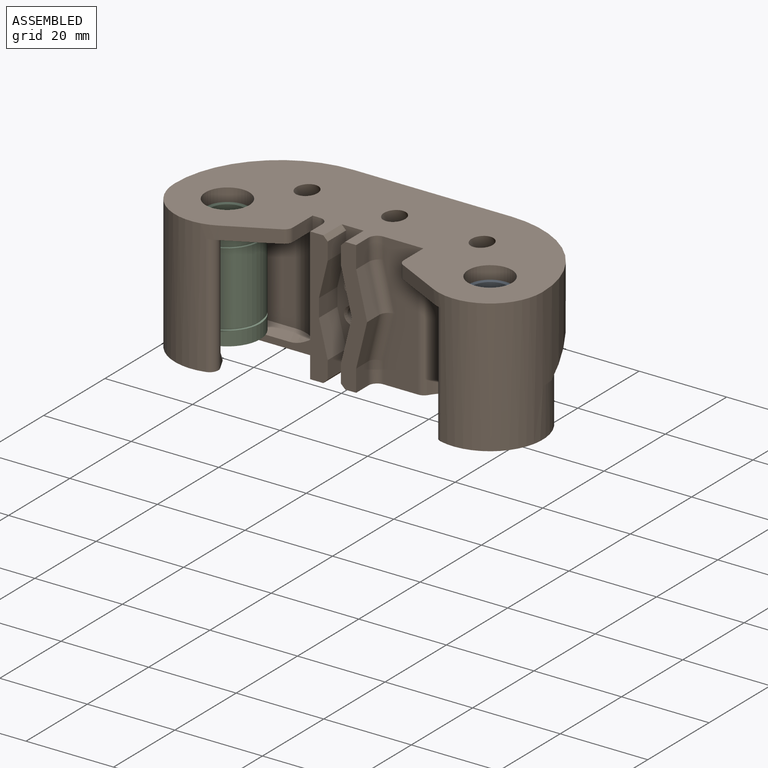
[diagram: assembled view]
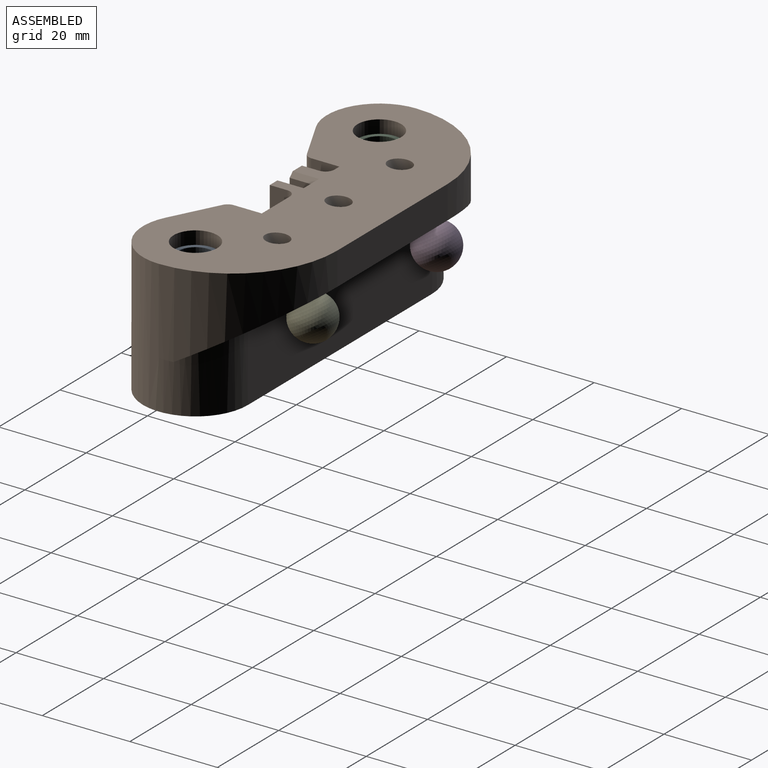
[diagram: assembled view, second angle]
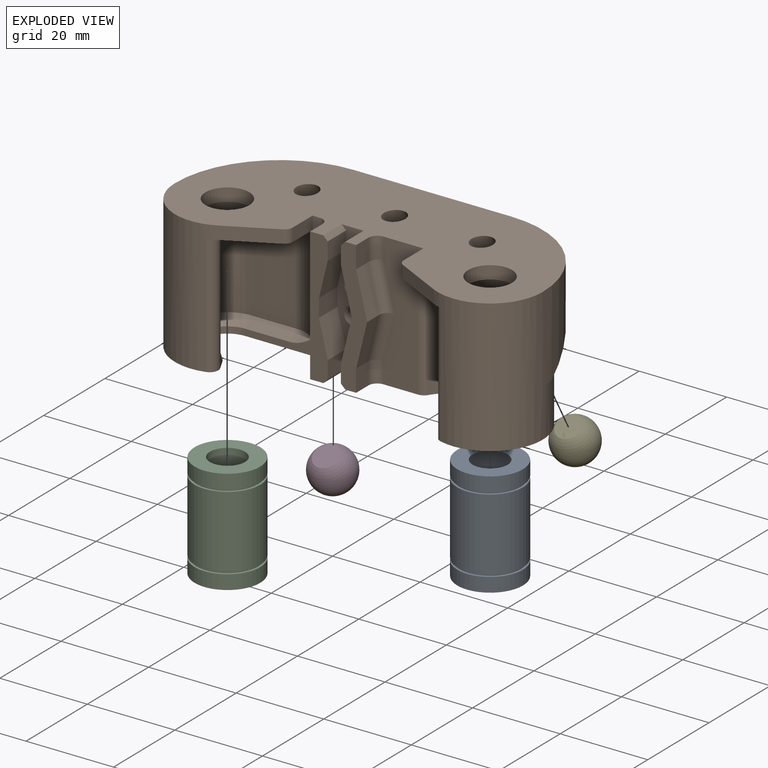
[diagram: exploded view]
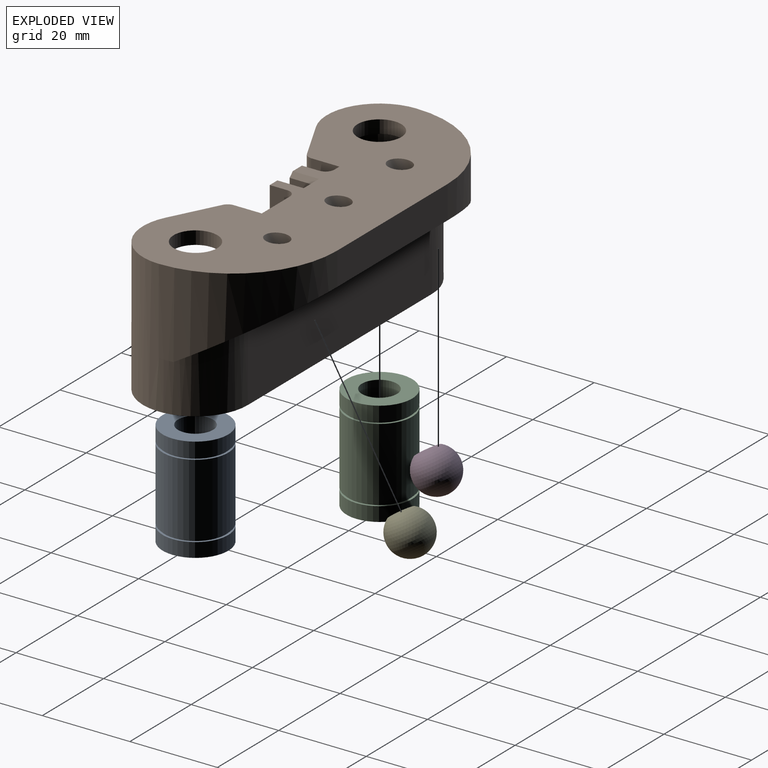
[diagram: exploded view, second angle]
ASSEMBLY  parts=5 mates=3
PART A: 12 faces, bbox 15x15x24 mm
  f0: plane 15x15mm, normal (0,0,1), area 126.4mm2, adj f1,f11
  f1: cylinder r=4mm len=24mm, axis (0,0,-1), area 603.2mm2, adj f0,f2
  f2: plane 15x15mm, normal (0,0,-1), area 126.4mm2, adj f1,f3
  f3: cylinder r=7.5mm len=15mm, axis (0,0,-1), area 153.2mm2, adj f2,f4
  f4: plane 15x15mm, normal (0,0,1), area 22.8mm2, adj f3,f5
  f5: cylinder r=7mm len=14mm, axis (0,0,-1), area 22mm2, adj f4,f6
  f6: plane 15x15mm, normal (0,0,-1), area 22.8mm2, adj f5,f7
  f7: cylinder r=7.5mm len=16.5mm, axis (0,0,-1), area 777.5mm2, adj f6,f8
  f8: plane 15x15mm, normal (0,0,1), area 22.8mm2, adj f7,f9
  f9: cylinder r=7mm len=14mm, axis (0,0,-1), area 22mm2, adj f8,f10
  f10: plane 15x15mm, normal (0,0,-1), area 22.8mm2, adj f9,f11
  f11: cylinder r=7.5mm len=15mm, axis (0,0,-1), area 153.2mm2, adj f0,f10
PART B: 87 faces, bbox 86.3x38.3x36.4 mm
  f0: plane 30.5x1.66mm, normal (0,-1,0), area 17mm2, adj f2,f13,f33,f35,f44,f77
  f1: plane 30.5x9.16mm, normal (0,-1,0), area 218.9mm2, adj f2,f13,f15,f17,f26,f78,f79,f80
  f2: plane 84x36mm, normal (0,0,1), area 2041.9mm2, adj f0,f1,f6,f7,f12,f14,f15,f16
  f3: plane 85.83x23.05mm, normal (0,0.5,-0.87), area 870mm2, adj f4,f5,f6,f12,f50,f51,f52,f53
  f4: plane 3.22x0.44mm, normal (0,0,-1), area 0.2mm2, adj f3,f6,f51
  f5: plane 60x16.07mm, normal (0,1,0), area 964.3mm2, adj f3,f6,f12,f13
  f6: cylinder r=12mm len=30.5mm, axis (0,0,-1), area 927.8mm2, adj f2,f3,f4,f5,f13,f32,f35,f43
  f7: plane 30.5x7.5mm, normal (0,-1,0), area 118.6mm2, adj f2,f13,f58,f59,f60,f61,f67,f68
  f8: cylinder r=7.7mm len=24mm, axis (0,0,-1), area 629.3mm2, adj f9,f17,f20,f23,f24
  f9: plane 24x10.25mm, normal (0,-1,0), area 246.1mm2, adj f8,f11,f17,f21
  f10: plane 27.5x2.73mm, normal (-0.89,0.45,0), area 12.1mm2, adj f13,f17,f23,f24,f25
  f11: cylinder r=7.7mm len=27.5mm, axis (0,0,-1), area 198.1mm2, adj f9,f13,f17,f18,f22,f26
  f12: cylinder r=12mm len=30.5mm, axis (0,0,-1), area 927.8mm2, adj f2,f3,f5,f13,f14,f17,f25,f52
  f13: plane 84.01x24.01mm, normal (0,0,-1), area 885.4mm2, adj f0,f1,f5,f6,f7,f10,f11,f12
  f14: plane 10.8x5.5mm, normal (-0.45,-0.89,0), area 36.4mm2, adj f2,f12,f17,f27
  f15: plane 6.41x3mm, normal (-1,0,0), area 19.2mm2, adj f1,f2,f17,f27
  f16: cylinder r=5mm len=10mm, axis (0,0,1), area 94.2mm2, adj f2,f17
  f17: plane 26.26x19.27mm, normal (0,0,-1), area 274.9mm2, adj f1,f8,f9,f10,f11,f12,f14,f15
  f18: plane 16.91x4.98mm, normal (0,-1,0), area 26.8mm2, adj f11,f13,f19,f21,f22
  f19: cylinder r=5.7mm len=11.4mm, axis (0,0,-1), area 29.6mm2, adj f13,f18,f20,f24
  f20: cone r=4.7mm half-angle=45deg, axis (0,0,1), area 63.7mm2, adj f8,f19,f21,f24
  f21: plane 10.25x2mm, normal (0,-0.71,0.71), area 29mm2, adj f9,f18,f20,f22
  f22: cone r=4.7mm half-angle=45deg, axis (0,0,1), area 7.3mm2, adj f11,f18,f21
  f23: cylinder r=2mm len=24.83mm, axis (0,0,-1), area 66.6mm2, adj f8,f10,f17,f24
  f24: bspline ~6.68x5.8mm, area 9.8mm2, adj f8,f10,f13,f19,f20,f23
  f25: cylinder r=2mm len=27.5mm, axis (0,0,-1), area 97.5mm2, adj f10,f12,f13,f17
  f26: cylinder r=2mm len=27.5mm, axis (0,0,-1), area 56.6mm2, adj f1,f11,f13,f17
  f27: cylinder r=2mm len=3mm, axis (0,0,-1), area 6.6mm2, adj f2,f14,f15,f17
  f28: cylinder r=7.7mm len=24mm, axis (0,0,-1), area 629.3mm2, adj f29,f35,f38,f41,f42
  f29: plane 24x10.25mm, normal (0,-1,0), area 246.1mm2, adj f28,f31,f35,f39
  f30: plane 27.5x2.73mm, normal (0.89,0.45,0), area 12.1mm2, adj f13,f35,f41,f42,f43
  f31: cylinder r=7.7mm len=27.5mm, axis (0,0,-1), area 198.1mm2, adj f13,f29,f35,f36,f40,f44
  f32: plane 10.8x5.5mm, normal (0.45,-0.89,0), area 36.4mm2, adj f2,f6,f35,f45
  f33: plane 6.41x3mm, normal (1,0,0), area 19.2mm2, adj f0,f2,f35,f45
  f34: cylinder r=5mm len=10mm, axis (0,0,1), area 94.2mm2, adj f2,f35
  f35: plane 26.26x19.27mm, normal (0,0,-1), area 274.9mm2, adj f0,f6,f28,f29,f30,f31,f32,f33
  f36: plane 16.91x4.98mm, normal (0,-1,0), area 26.8mm2, adj f13,f31,f37,f39,f40
  f37: cylinder r=5.7mm len=11.4mm, axis (0,0,-1), area 29.6mm2, adj f13,f36,f38,f42
  f38: cone r=4.7mm half-angle=45deg, axis (0,0,1), area 63.7mm2, adj f28,f37,f39,f42
  f39: plane 10.25x2mm, normal (0,-0.71,0.71), area 29mm2, adj f29,f36,f38,f40
  f40: cone r=4.7mm half-angle=45deg, axis (0,0,1), area 7.3mm2, adj f31,f36,f39
  f41: cylinder r=2mm len=24.83mm, axis (0,0,-1), area 66.6mm2, adj f28,f30,f35,f42
  f42: bspline ~6.68x5.8mm, area 9.8mm2, adj f13,f28,f30,f37,f38,f41
  f43: cylinder r=2mm len=27.5mm, axis (0,0,-1), area 97.5mm2, adj f6,f13,f30,f35
  f44: cylinder r=2mm len=27.5mm, axis (0,0,-1), area 56.6mm2, adj f0,f13,f31,f35
  f45: cylinder r=2mm len=3mm, axis (0,0,-1), area 6.6mm2, adj f2,f32,f33,f35
  f46: cylinder r=1.5mm len=6.5mm, axis (0,-1,0), area 61.3mm2, adj f47,f82
  f47: plane 3x3mm, normal (0,-1,0), area 7.1mm2, adj f46
  f48: cylinder r=1.5mm len=6.5mm, axis (0,-1,0), area 61.3mm2, adj f49,f83
  f49: plane 3x3mm, normal (0,-1,0), area 7.1mm2, adj f48
  f50: plane 36x7.5mm, normal (0,1,0), area 270mm2, adj f2,f3,f51,f52
  f51: cylinder r=24mm len=24mm, axis (0,0,1), area 469.6mm2, adj f2,f3,f4,f6,f50
  f52: cylinder r=24mm len=24mm, axis (0,0,1), area 469.6mm2, adj f2,f3,f12,f50,f53
  f53: plane 3.22x0.44mm, normal (0,0,-1), area 0.2mm2, adj f3,f12,f52
  f54: cylinder r=2.4mm len=14.15mm, axis (0,0.5,-0.87), area 183.4mm2, adj f2,f85
  f55: cylinder r=2.4mm len=14.15mm, axis (0,0.5,-0.87), area 183.4mm2, adj f2,f84
  f56: cylinder r=2.4mm len=14.15mm, axis (0,0.5,-0.87), area 183.4mm2, adj f2,f86
  f57: plane 5x4mm, normal (1,0,0), area 20mm2, adj f2,f64,f65,f78
  f58: plane 6x4mm, normal (-1,0,0), area 24mm2, adj f7,f59,f65,f75
  f59: plane 10.25x6mm, normal (-0.97,0,-0.24), area 63.3mm2, adj f7,f58,f60,f65
  f60: plane 10.25x6mm, normal (-0.97,0,0.24), area 63.3mm2, adj f7,f59,f61,f65
  f61: plane 6x4mm, normal (-1,0,0), area 24mm2, adj f7,f60,f65,f73
  f62: plane 5x4mm, normal (1,0,0), area 20mm2, adj f13,f63,f65,f81
  f63: plane 10.25x4mm, normal (0.97,0,-0.24), area 42.2mm2, adj f62,f64,f65,f80
  f64: plane 10.25x4mm, normal (0.97,0,0.24), area 42.2mm2, adj f57,f63,f65,f79
  f65: plane 30.5x6mm, normal (0,-1,0), area 105.8mm2, adj f2,f13,f57,f58,f59,f60,f61,f62
  f66: plane 30.5x4mm, normal (-1,0,0), area 122mm2, adj f2,f13,f72,f77
  f67: plane 6x4mm, normal (1,0,0), area 24mm2, adj f7,f68,f72,f74
  f68: plane 8.2x6mm, normal (0.97,0,0.24), area 50.6mm2, adj f7,f67,f69,f72
  f69: plane 6x4.1mm, normal (1,0,0), area 24.6mm2, adj f7,f68,f70,f72
  f70: plane 8.2x6mm, normal (0.97,0,-0.24), area 50.6mm2, adj f7,f69,f71,f72
  f71: plane 6x4mm, normal (1,0,0), area 24mm2, adj f7,f70,f72,f76
  f72: plane 30.5x4mm, normal (0,-1,0), area 96.4mm2, adj f2,f13,f66,f67,f68,f69,f70,f71
  f73: plane 6x1mm, normal (-0.71,0,-0.71), area 8.5mm2, adj f7,f13,f61,f65
  f74: plane 6x1mm, normal (0.71,0,-0.71), area 8.5mm2, adj f7,f13,f67,f72
  f75: plane 6x1mm, normal (-0.71,0,0.71), area 8.5mm2, adj f2,f7,f58,f65
  f76: plane 6x1mm, normal (0.71,0,0.71), area 8.5mm2, adj f2,f7,f71,f72
  f77: cylinder r=2mm len=30.5mm, axis (0,0,1), area 95.8mm2, adj f0,f2,f13,f66
  f78: cylinder r=2mm len=5mm, axis (0,0,-1), area 15.3mm2, adj f1,f2,f57,f79
  f79: cylinder r=2mm len=11.2mm, axis (0.24,0,-0.97), area 33.5mm2, adj f1,f64,f78,f80
  f80: cylinder r=2mm len=11.2mm, axis (-0.24,0,-0.97), area 33.5mm2, adj f1,f63,f79,f81
  f81: cylinder r=2mm len=5mm, axis (0,0,-1), area 15.3mm2, adj f1,f13,f62,f80
  f82: cone r=2mm half-angle=45deg, axis (0,-1,0), area 7.8mm2, adj f7,f46
  f83: cone r=1.5mm half-angle=45deg, axis (0,-1,0), area 7.8mm2, adj f7,f48
  f84: cone r=2.9mm half-angle=45deg, axis (0,0.5,-0.87), area 11.8mm2, adj f3,f55
  f85: cone r=2.4mm half-angle=45deg, axis (0,0.5,-0.87), area 11.8mm2, adj f3,f54
  f86: cone r=2.4mm half-angle=45deg, axis (0,0.5,-0.87), area 11.8mm2, adj f3,f56
PART C: same geometry as A
PART D: 2 faces, bbox 10x10x9.1 mm
  f0: plane 5.72x5.72mm, normal (0,0,-1), area 25.7mm2, adj f1
  f1: sphere r=5mm, area 285.9mm2, adj f0
PART E: same geometry as D
PLACE A t=(30,0,3.5)mm
PLACE B at identity fixed
PLACE C t=(-30,0,3.5)mm
PLACE D rot(axis=(-1,0,0),150deg) t=(-20,18,19.54)mm
PLACE E rot(axis=(-1,0,0),150deg) t=(20,17.75,19.97)mm
MATE fastened A.f1 <-> B.f16  axis (0,0,-1) through (30,0,27.5)mm
MATE fastened B.f86 <-> E.f0  axis (0,0.5,-0.87) through (20,17.75,19.97)mm
MATE fastened C.f1 <-> B.f34  axis (0,0,-1) through (-30,0,27.5)mm
